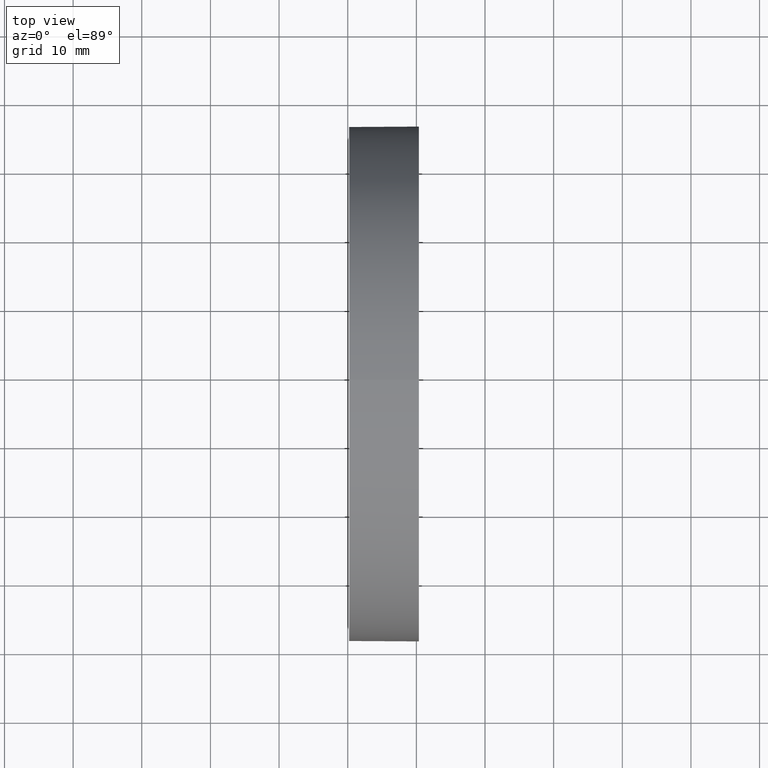
[diagram: clean part render]
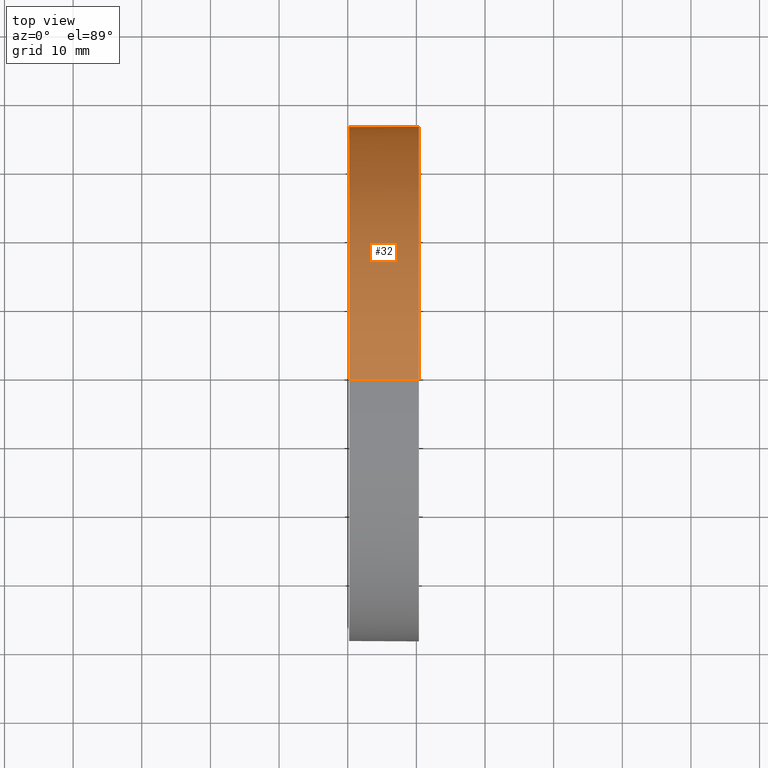
[diagram: same view with one face highlighted and labeled with its STEP entity id]
A machine part, top view. The second image highlights one B-rep face of the part: STEP entity #32.
In plain terms, the highlighted cylindrical surface (partial cylindrical patch) has radius 37.5 mm, axis along (-1, -0, -0).
Its self-contained STEP definition (entity closure, byte-faithful):
#2 = CIRCLE ( 'NONE', #160, 37.50000000000000700 ) ;
#4 = CARTESIAN_POINT ( 'NONE',  ( 240.3726307063705000, 138.7560422467448700, 0.0000000000000000000 ) ) ;
#5 = EDGE_CURVE ( 'NONE', #101, #154, #2, .T. ) ;
#9 = DIRECTION ( 'NONE',  ( -1.000000000000000000, -0.0000000000000000000, -0.0000000000000000000 ) ) ;
#14 = AXIS2_PLACEMENT_3D ( 'NONE', #51, #68, #130 ) ;
#22 = DIRECTION ( 'NONE',  ( -1.000000000000000000, -0.0000000000000000000, -0.0000000000000000000 ) ) ;
#26 = CARTESIAN_POINT ( 'NONE',  ( 217.9702860043302100, 138.7560422467448700, 37.50000000000000700 ) ) ;
#27 = CARTESIAN_POINT ( 'NONE',  ( 240.3726307063705000, 176.2560422467451800, 0.0000000000000000000 ) ) ;
#32 = ADVANCED_FACE ( 'NONE', ( #145 ), #142, .T. ) ;
#36 = ORIENTED_EDGE ( 'NONE', *, *, #37, .F. ) ;
#37 = EDGE_CURVE ( 'NONE', #112, #101, #63, .T. ) ;
#41 = EDGE_CURVE ( 'NONE', #112, #108, #97, .T. ) ;
#45 = AXIS2_PLACEMENT_3D ( 'NONE', #4, #100, #119 ) ;
#46 = DIRECTION ( 'NONE',  ( 0.0000000000000000000, 0.0000000000000000000, 1.000000000000000000 ) ) ;
#48 = EDGE_CURVE ( 'NONE', #108, #57, #178, .T. ) ;
#51 = CARTESIAN_POINT ( 'NONE',  ( 217.9702860043302100, 138.7560422467448700, 0.0000000000000000000 ) ) ;
#52 = CARTESIAN_POINT ( 'NONE',  ( 240.3726307063705000, 138.7560422467448700, 37.50000000000000700 ) ) ;
#57 = VERTEX_POINT ( 'NONE', #132 ) ;
#58 = VECTOR ( 'NONE', #22, 1000.000000000000000 ) ;
#63 = LINE ( 'NONE', #26, #137 ) ;
#68 = DIRECTION ( 'NONE',  ( -1.000000000000000000, -0.0000000000000000000, -0.0000000000000000000 ) ) ;
#70 = CARTESIAN_POINT ( 'NONE',  ( 230.1996119052661200, 138.7560422467448700, 37.50000000000000700 ) ) ;
#73 = CARTESIAN_POINT ( 'NONE',  ( 240.3726307063705000, 138.7560422467448700, 0.0000000000000000000 ) ) ;
#88 = DIRECTION ( 'NONE',  ( -1.000000000000000000, -0.0000000000000000000, -0.0000000000000000000 ) ) ;
#93 = EDGE_LOOP ( 'NONE', ( #110, #136, #176, #36, #149 ) ) ;
#97 = CIRCLE ( 'NONE', #134, 37.50000000000000700 ) ;
#100 = DIRECTION ( 'NONE',  ( -1.000000000000000000, -0.0000000000000000000, -0.0000000000000000000 ) ) ;
#101 = VERTEX_POINT ( 'NONE', #70 ) ;
#108 = VERTEX_POINT ( 'NONE', #27 ) ;
#110 = ORIENTED_EDGE ( 'NONE', *, *, #48, .T. ) ;
#112 = VERTEX_POINT ( 'NONE', #52 ) ;
#115 = CARTESIAN_POINT ( 'NONE',  ( 217.9702860043302100, 138.7560422467448700, -37.50000000000000700 ) ) ;
#119 = DIRECTION ( 'NONE',  ( 0.0000000000000000000, 0.0000000000000000000, 1.000000000000000000 ) ) ;
#126 = CARTESIAN_POINT ( 'NONE',  ( 230.1996119052661200, 138.7560422467448700, -37.50000000000000700 ) ) ;
#130 = DIRECTION ( 'NONE',  ( 0.0000000000000000000, 0.0000000000000000000, 1.000000000000000000 ) ) ;
#131 = DIRECTION ( 'NONE',  ( 0.0000000000000000000, 0.0000000000000000000, 1.000000000000000000 ) ) ;
#132 = CARTESIAN_POINT ( 'NONE',  ( 240.3726307063705000, 138.7560422467448700, -37.50000000000000700 ) ) ;
#134 = AXIS2_PLACEMENT_3D ( 'NONE', #73, #88, #131 ) ;
#136 = ORIENTED_EDGE ( 'NONE', *, *, #150, .T. ) ;
#137 = VECTOR ( 'NONE', #174, 1000.000000000000000 ) ;
#138 = CARTESIAN_POINT ( 'NONE',  ( 230.1996119052661200, 138.7560422467448700, 0.0000000000000000000 ) ) ;
#142 = CYLINDRICAL_SURFACE ( 'NONE', #14, 37.50000000000000700 ) ;
#145 = FACE_OUTER_BOUND ( 'NONE', #93, .T. ) ;
#149 = ORIENTED_EDGE ( 'NONE', *, *, #41, .T. ) ;
#150 = EDGE_CURVE ( 'NONE', #57, #154, #164, .T. ) ;
#154 = VERTEX_POINT ( 'NONE', #126 ) ;
#160 = AXIS2_PLACEMENT_3D ( 'NONE', #138, #9, #46 ) ;
#164 = LINE ( 'NONE', #115, #58 ) ;
#174 = DIRECTION ( 'NONE',  ( -1.000000000000000000, -0.0000000000000000000, -0.0000000000000000000 ) ) ;
#176 = ORIENTED_EDGE ( 'NONE', *, *, #5, .F. ) ;
#178 = CIRCLE ( 'NONE', #45, 37.50000000000000700 ) ;